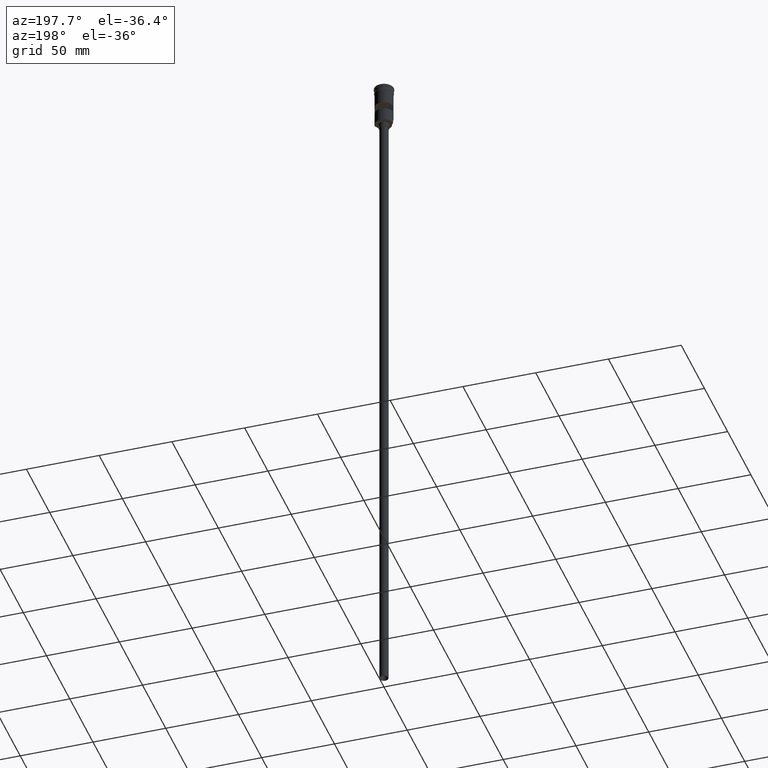
[diagram: clean part render]
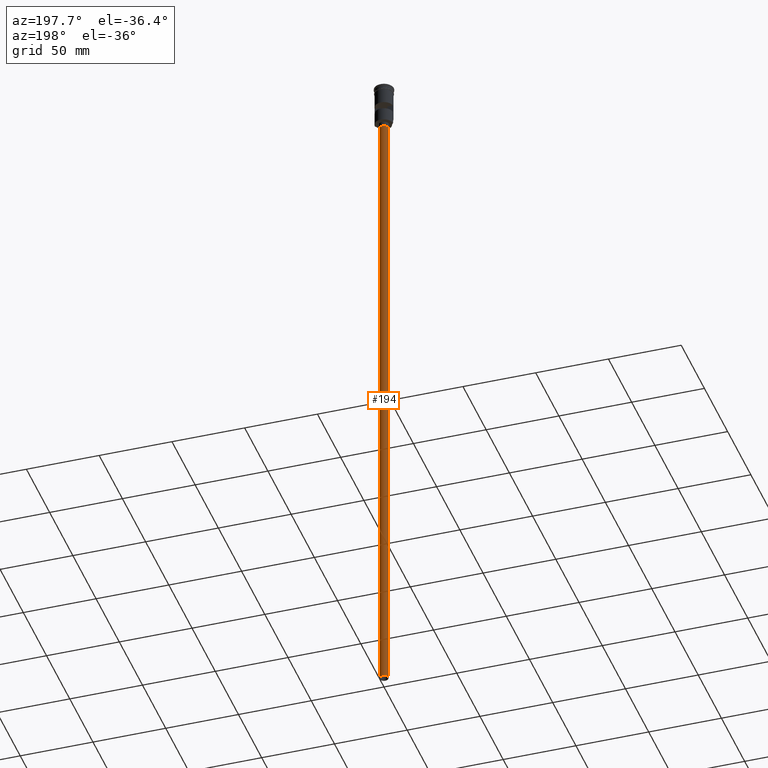
[diagram: same view with one face highlighted and labeled with its STEP entity id]
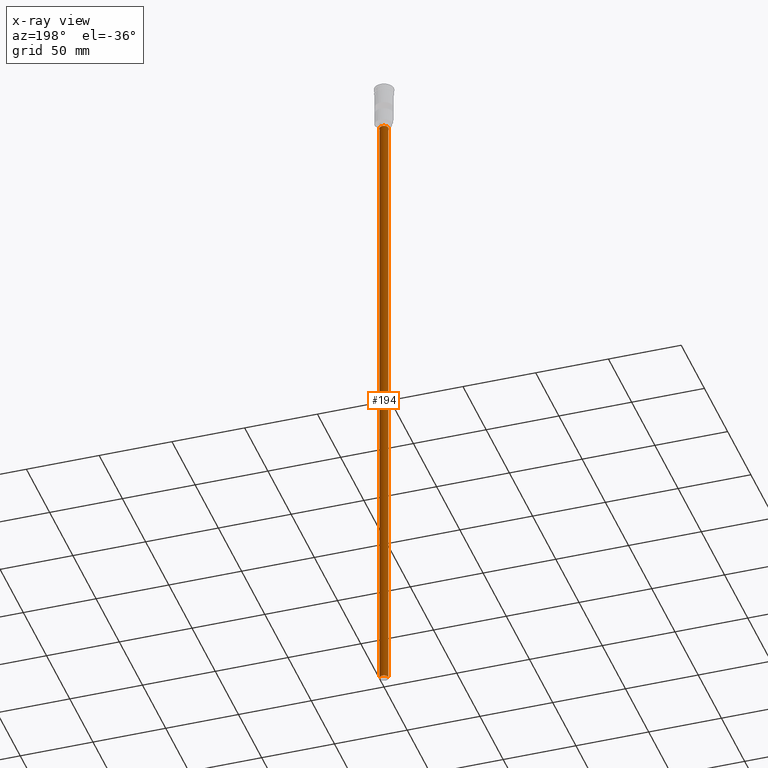
[diagram: x-ray of the same camera — body ghosted, the highlighted face saturated]
A machine part, auxiliary view. The second image highlights one B-rep face of the part: STEP entity #194.
The next image is the same camera in x-ray: the body ghosted, the highlighted face saturated — about 0% of this face is hidden behind the body in this view.
In plain terms, the highlighted cylindrical surface (edge-blend (fillet) strip) has radius 3 mm, axis along (-0, -0, 1).
Its self-contained STEP definition (entity closure, byte-faithful):
#12 = CARTESIAN_POINT ( 'NONE',  ( 0.000000000000000000, 0.000000000000000000, -478.5000000000000568 ) ) ;
#17 = VERTEX_POINT ( 'NONE', #1466 ) ;
#23 = VERTEX_POINT ( 'NONE', #833 ) ;
#118 = VECTOR ( 'NONE', #1192, 1000.000000000000000 ) ;
#136 = ORIENTED_EDGE ( 'NONE', *, *, #697, .T. ) ;
#165 = CARTESIAN_POINT ( 'NONE',  ( 0.000000000000000000, 0.000000000000000000, -31.50000000000000000 ) ) ;
#188 = EDGE_CURVE ( 'NONE', #23, #1282, #1375, .T. ) ;
#194 = ADVANCED_FACE ( 'NONE', ( #1261 ), #1487, .T. ) ;
#279 = DIRECTION ( 'NONE',  ( -0.000000000000000000, -0.000000000000000000, 1.000000000000000000 ) ) ;
#461 = CIRCLE ( 'NONE', #1435, 3.000000000000000444 ) ;
#525 = ORIENTED_EDGE ( 'NONE', *, *, #583, .F. ) ;
#533 = AXIS2_PLACEMENT_3D ( 'NONE', #12, #912, #796 ) ;
#583 = EDGE_CURVE ( 'NONE', #23, #1151, #1033, .T. ) ;
#627 = DIRECTION ( 'NONE',  ( -0.000000000000000000, -0.000000000000000000, 1.000000000000000000 ) ) ;
#633 = DIRECTION ( 'NONE',  ( 1.000000000000000000, 0.000000000000000000, 0.000000000000000000 ) ) ;
#657 = CARTESIAN_POINT ( 'NONE',  ( -3.000000000000000444, 3.673940397442060361E-16, -478.5000000000000568 ) ) ;
#697 = EDGE_CURVE ( 'NONE', #1282, #17, #461, .T. ) ;
#749 = CARTESIAN_POINT ( 'NONE',  ( -3.000000000000000444, 3.673940397442060361E-16, -31.50000000000000000 ) ) ;
#777 = EDGE_LOOP ( 'NONE', ( #525, #1362, #136, #951 ) ) ;
#796 = DIRECTION ( 'NONE',  ( -1.000000000000000000, 0.000000000000000000, 0.000000000000000000 ) ) ;
#805 = DIRECTION ( 'NONE',  ( 0.000000000000000000, 0.000000000000000000, -1.000000000000000000 ) ) ;
#810 = EDGE_CURVE ( 'NONE', #1151, #17, #1409, .T. ) ;
#833 = CARTESIAN_POINT ( 'NONE',  ( -3.000000000000000444, 3.673940397442060361E-16, -478.5000000000000568 ) ) ;
#912 = DIRECTION ( 'NONE',  ( 0.000000000000000000, 0.000000000000000000, -1.000000000000000000 ) ) ;
#951 = ORIENTED_EDGE ( 'NONE', *, *, #810, .F. ) ;
#1033 = CIRCLE ( 'NONE', #533, 3.000000000000000444 ) ;
#1133 = VECTOR ( 'NONE', #627, 1000.000000000000000 ) ;
#1151 = VERTEX_POINT ( 'NONE', #1174 ) ;
#1174 = CARTESIAN_POINT ( 'NONE',  ( 3.000000000000000444, 0.000000000000000000, -478.5000000000000568 ) ) ;
#1192 = DIRECTION ( 'NONE',  ( -0.000000000000000000, -0.000000000000000000, 1.000000000000000000 ) ) ;
#1261 = FACE_OUTER_BOUND ( 'NONE', #777, .T. ) ;
#1282 = VERTEX_POINT ( 'NONE', #749 ) ;
#1362 = ORIENTED_EDGE ( 'NONE', *, *, #188, .T. ) ;
#1368 = CARTESIAN_POINT ( 'NONE',  ( 0.000000000000000000, 0.000000000000000000, -478.5000000000000568 ) ) ;
#1375 = LINE ( 'NONE', #657, #1133 ) ;
#1409 = LINE ( 'NONE', #1535, #118 ) ;
#1435 = AXIS2_PLACEMENT_3D ( 'NONE', #165, #805, #1520 ) ;
#1466 = CARTESIAN_POINT ( 'NONE',  ( 3.000000000000000444, 0.000000000000000000, -31.50000000000000000 ) ) ;
#1487 = CYLINDRICAL_SURFACE ( 'NONE', #1537, 3.000000000000000444 ) ;
#1520 = DIRECTION ( 'NONE',  ( -1.000000000000000000, 0.000000000000000000, 0.000000000000000000 ) ) ;
#1535 = CARTESIAN_POINT ( 'NONE',  ( 3.000000000000000444, 0.000000000000000000, -478.5000000000000568 ) ) ;
#1537 = AXIS2_PLACEMENT_3D ( 'NONE', #1368, #279, #633 ) ;